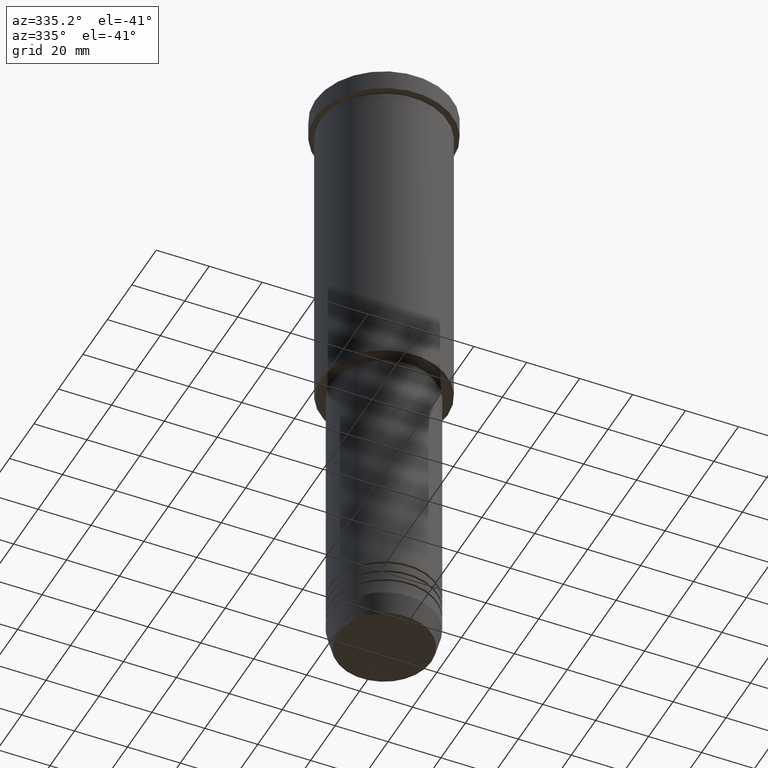
[diagram: clean part render]
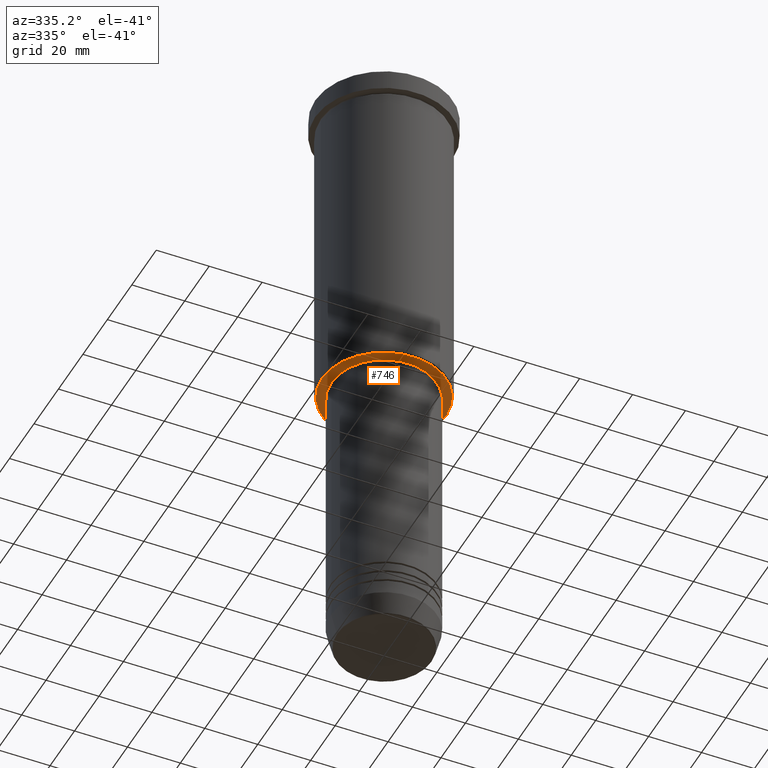
[diagram: same view with one face highlighted and labeled with its STEP entity id]
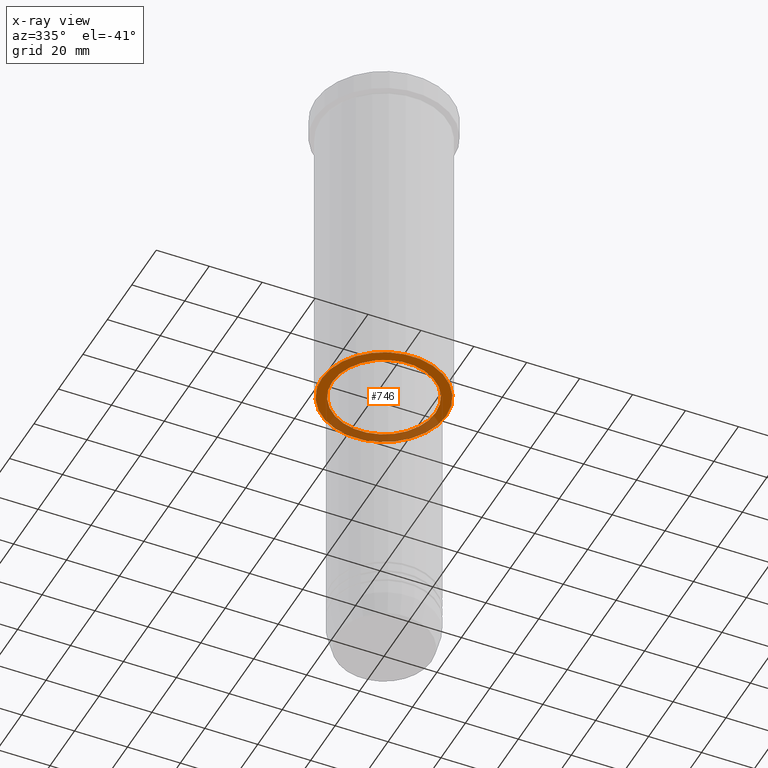
[diagram: x-ray of the same camera — body ghosted, the highlighted face saturated]
A machine part, auxiliary view. The second image highlights one B-rep face of the part: STEP entity #746.
The next image is the same camera in x-ray: the body ghosted, the highlighted face saturated — about 32% of this face is hidden behind the body in this view.
In plain terms, the highlighted planar face has unit normal (0, 0, -1).
Its self-contained STEP definition (entity closure, byte-faithful):
#64 = EDGE_CURVE ( 'NONE', #1061, #332, #1179, .T. ) ;
#112 = DIRECTION ( 'NONE',  ( -1.000000000000000000, 0.000000000000000000, 0.000000000000000000 ) ) ;
#117 = VERTEX_POINT ( 'NONE', #890 ) ;
#120 = CARTESIAN_POINT ( 'NONE',  ( 23.50000000000001776, 0.000000000000000000, -126.0000000000000000 ) ) ;
#145 = CARTESIAN_POINT ( 'NONE',  ( 0.000000000000000000, 0.000000000000000000, -126.0000000000000000 ) ) ;
#158 = CARTESIAN_POINT ( 'NONE',  ( 0.000000000000000000, 0.000000000000000000, -126.0000000000000000 ) ) ;
#171 = EDGE_CURVE ( 'NONE', #332, #1061, #1119, .T. ) ;
#261 = CIRCLE ( 'NONE', #925, 23.50000000000001776 ) ;
#270 = CARTESIAN_POINT ( 'NONE',  ( -19.50000000000000355, 2.388061258337339333E-15, -126.0000000000000000 ) ) ;
#272 = DIRECTION ( 'NONE',  ( -1.000000000000000000, 0.000000000000000000, -0.000000000000000000 ) ) ;
#332 = VERTEX_POINT ( 'NONE', #785 ) ;
#343 = DIRECTION ( 'NONE',  ( 1.000000000000000000, 0.000000000000000000, 0.000000000000000000 ) ) ;
#359 = CIRCLE ( 'NONE', #892, 23.50000000000001776 ) ;
#372 = DIRECTION ( 'NONE',  ( 0.000000000000000000, 0.000000000000000000, -1.000000000000000000 ) ) ;
#441 = EDGE_LOOP ( 'NONE', ( #470, #669 ) ) ;
#460 = ORIENTED_EDGE ( 'NONE', *, *, #1130, .T. ) ;
#467 = PLANE ( 'NONE',  #1081 ) ;
#470 = ORIENTED_EDGE ( 'NONE', *, *, #171, .T. ) ;
#561 = VERTEX_POINT ( 'NONE', #120 ) ;
#572 = ORIENTED_EDGE ( 'NONE', *, *, #1138, .T. ) ;
#599 = AXIS2_PLACEMENT_3D ( 'NONE', #158, #1164, #343 ) ;
#650 = CARTESIAN_POINT ( 'NONE',  ( 0.000000000000000000, 0.000000000000000000, -126.0000000000000000 ) ) ;
#669 = ORIENTED_EDGE ( 'NONE', *, *, #64, .T. ) ;
#673 = DIRECTION ( 'NONE',  ( 1.000000000000000000, 0.000000000000000000, 0.000000000000000000 ) ) ;
#727 = CARTESIAN_POINT ( 'NONE',  ( 0.000000000000000000, 24.00000000000000000, -126.0000000000000000 ) ) ;
#746 = ADVANCED_FACE ( 'NONE', ( #1093, #1177 ), #467, .T. ) ;
#747 = DIRECTION ( 'NONE',  ( -1.000000000000000000, 0.000000000000000000, 0.000000000000000000 ) ) ;
#785 = CARTESIAN_POINT ( 'NONE',  ( 19.50000000000000355, 0.000000000000000000, -126.0000000000000000 ) ) ;
#809 = AXIS2_PLACEMENT_3D ( 'NONE', #145, #1068, #673 ) ;
#890 = CARTESIAN_POINT ( 'NONE',  ( -23.50000000000001776, 2.908536147974965291E-15, -126.0000000000000000 ) ) ;
#892 = AXIS2_PLACEMENT_3D ( 'NONE', #650, #1016, #747 ) ;
#925 = AXIS2_PLACEMENT_3D ( 'NONE', #933, #372, #112 ) ;
#933 = CARTESIAN_POINT ( 'NONE',  ( 0.000000000000000000, 0.000000000000000000, -126.0000000000000000 ) ) ;
#965 = EDGE_LOOP ( 'NONE', ( #572, #460 ) ) ;
#983 = DIRECTION ( 'NONE',  ( 0.000000000000000000, 0.000000000000000000, -1.000000000000000000 ) ) ;
#1016 = DIRECTION ( 'NONE',  ( 0.000000000000000000, 0.000000000000000000, -1.000000000000000000 ) ) ;
#1061 = VERTEX_POINT ( 'NONE', #270 ) ;
#1068 = DIRECTION ( 'NONE',  ( -0.000000000000000000, -0.000000000000000000, 1.000000000000000000 ) ) ;
#1081 = AXIS2_PLACEMENT_3D ( 'NONE', #727, #983, #272 ) ;
#1093 = FACE_OUTER_BOUND ( 'NONE', #965, .T. ) ;
#1119 = CIRCLE ( 'NONE', #599, 19.50000000000000355 ) ;
#1130 = EDGE_CURVE ( 'NONE', #117, #561, #261, .T. ) ;
#1138 = EDGE_CURVE ( 'NONE', #561, #117, #359, .T. ) ;
#1164 = DIRECTION ( 'NONE',  ( -0.000000000000000000, -0.000000000000000000, 1.000000000000000000 ) ) ;
#1177 = FACE_BOUND ( 'NONE', #441, .T. ) ;
#1179 = CIRCLE ( 'NONE', #809, 19.50000000000000355 ) ;